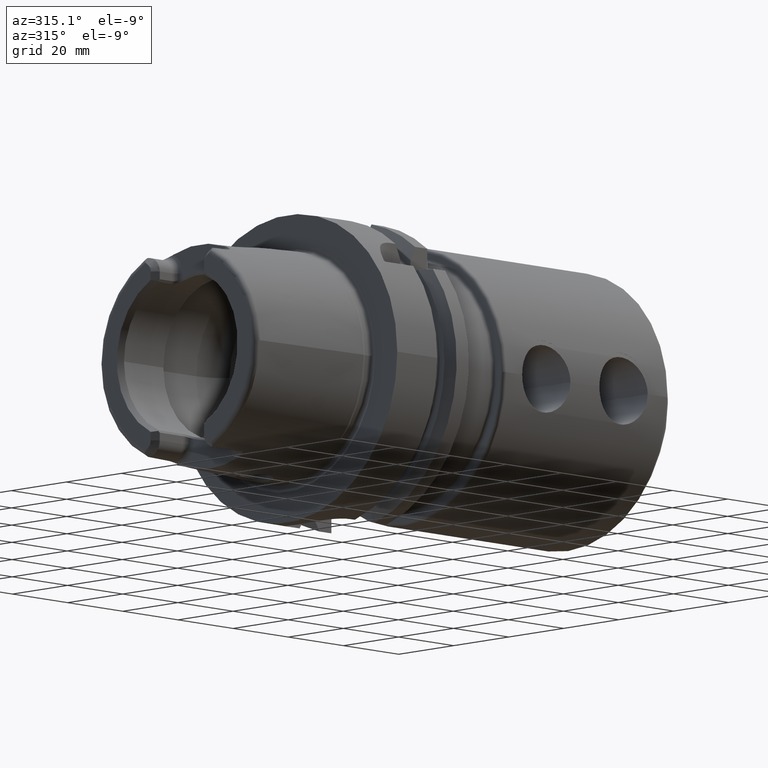
[diagram: clean part render]
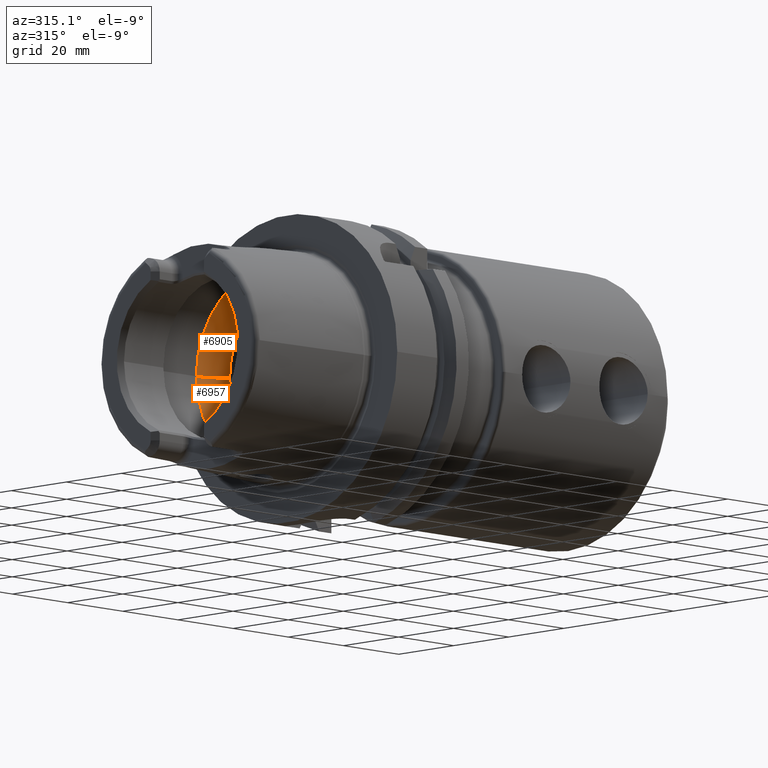
[diagram: same view with one multi-face feature highlighted, each face labeled with its STEP entity id]
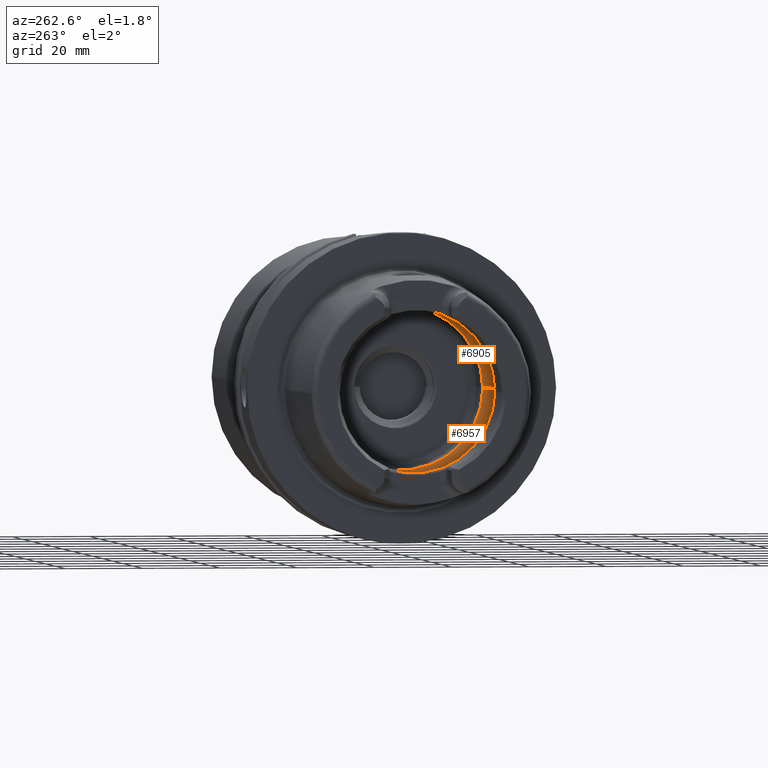
[diagram: same view with one multi-face feature highlighted, each face labeled with its STEP entity id]
A machine part, auxiliary view. The highlighted faces form ONE feature: a constant-radius fillet chain: 2 tangent blend faces with common blend radius 10 mm. The faces share edges in the B-rep.
A second angle (auxiliary view) of the same feature is appended — it is thin or edge-on in the first view.
Their STEP definitions:
[1] entity #6905 (Torus):
#2753=CARTESIAN_POINT('',(-7.75E0,0.E0,2.503658741279E1));
#2754=CARTESIAN_POINT('',(-7.75E0,1.161413944826E-1,2.503658741279E1));
#2755=CARTESIAN_POINT('',(-7.759353280947E0,3.548842682343E-1,
2.503524893594E1));
#2756=CARTESIAN_POINT('',(-7.808408224657E0,7.377757786258E-1,
2.502813969120E1));
#2757=CARTESIAN_POINT('',(-7.893536844474E0,1.117051637940E0,2.501544531385E1));
#2758=CARTESIAN_POINT('',(-7.969173100497E0,1.352692791760E0,2.500369856457E1));
#2759=CARTESIAN_POINT('',(-8.011228058169E0,1.467037285165E0,2.499698785062E1));
#2761=CARTESIAN_POINT('',(-8.011228058169E0,-1.467037285165E0,
2.499698785062E1));
#2762=CARTESIAN_POINT('',(-7.969313911749E0,-1.353075647722E0,
2.500367609531E1));
#2763=CARTESIAN_POINT('',(-7.893731282746E0,-1.117850280583E0,
2.501541625380E1));
#2764=CARTESIAN_POINT('',(-7.808218322235E0,-7.369928142967E-1,
2.502816795517E1));
#2765=CARTESIAN_POINT('',(-7.759228341302E0,-3.532973252629E-1,
2.503526676221E1));
#2766=CARTESIAN_POINT('',(-7.75E0,-1.154255832755E-1,2.503658741279E1));
#2767=CARTESIAN_POINT('',(-7.75E0,0.E0,2.503658741279E1));
#2769=CARTESIAN_POINT('',(0.E0,0.E0,0.E0));
#2770=DIRECTION('',(1.E0,0.E0,0.E0));
#2771=DIRECTION('',(0.E0,1.E0,0.E0));
#2772=AXIS2_PLACEMENT_3D('',#2769,#2770,#2771);
#2797=CARTESIAN_POINT('',(-8.011228058169E0,0.E0,0.E0));
#2798=DIRECTION('',(1.E0,0.E0,0.E0));
#2799=DIRECTION('',(0.E0,1.E0,0.E0));
#2800=AXIS2_PLACEMENT_3D('',#2797,#2798,#2799);
#2802=CARTESIAN_POINT('',(-8.011228058169E0,0.E0,0.E0));
#2803=DIRECTION('',(1.E0,0.E0,0.E0));
#2804=DIRECTION('',(0.E0,-5.858775100500E-2,9.982822624049E-1));
#2805=AXIS2_PLACEMENT_3D('',#2802,#2803,#2804);
#2902=CARTESIAN_POINT('',(-8.011228058169E0,1.504E1,0.E0));
#2903=DIRECTION('',(0.E0,0.E0,1.E0));
#2904=DIRECTION('',(8.011228058169E-1,5.985E-1,0.E0));
#2905=AXIS2_PLACEMENT_3D('',#2902,#2903,#2904);
#2912=CARTESIAN_POINT('',(-8.011228058169E0,-1.504E1,0.E0));
#2913=DIRECTION('',(0.E0,0.E0,-1.E0));
#2914=DIRECTION('',(8.011228058169E-1,-5.985E-1,0.E0));
#2915=AXIS2_PLACEMENT_3D('',#2912,#2913,#2914);
#3493=CARTESIAN_POINT('',(-7.75E0,0.E0,2.503658741279E1));
#3494=VERTEX_POINT('',#3493);
#3511=CARTESIAN_POINT('',(0.E0,2.1025E1,0.E0));
#3512=VERTEX_POINT('',#3511);
#3513=CARTESIAN_POINT('',(-8.011228058169E0,2.504E1,0.E0));
#3514=VERTEX_POINT('',#3513);
#3523=CARTESIAN_POINT('',(0.E0,-2.1025E1,0.E0));
#3524=VERTEX_POINT('',#3523);
#3525=CARTESIAN_POINT('',(-8.011228058169E0,-2.504E1,0.E0));
#3526=VERTEX_POINT('',#3525);
#3543=VERTEX_POINT('',#2759);
#3544=VERTEX_POINT('',#2761);
#6886=CARTESIAN_POINT('',(-8.011228058169E0,0.E0,0.E0));
#6887=DIRECTION('',(1.E0,0.E0,0.E0));
#6888=DIRECTION('',(0.E0,-1.E0,0.E0));
#6889=AXIS2_PLACEMENT_3D('',#6886,#6887,#6888);
#6890=TOROIDAL_SURFACE('',#6889,1.504E1,1.E1);
#6891=ORIENTED_EDGE('',*,*,#6863,.F.);
#6892=ORIENTED_EDGE('',*,*,#6613,.F.);
#6894=ORIENTED_EDGE('',*,*,#6893,.T.);
#6896=ORIENTED_EDGE('',*,*,#6895,.F.);
#6898=ORIENTED_EDGE('',*,*,#6897,.F.);
#6900=ORIENTED_EDGE('',*,*,#6899,.T.);
#6902=ORIENTED_EDGE('',*,*,#6901,.T.);
#6903=EDGE_LOOP('',(#6891,#6892,#6894,#6896,#6898,#6900,#6902));
#6904=FACE_OUTER_BOUND('',#6903,.F.);
#6905=ADVANCED_FACE('',(#6904),#6890,.F.);
#2760=B_SPLINE_CURVE_WITH_KNOTS('',3,(#2753,#2754,#2755,#2756,#2757,#2758,
#2759),.UNSPECIFIED.,.F.,.F.,(4,1,1,1,4),(0.E0,2.5E-1,5.E-1,7.5E-1,1.E0),
.UNSPECIFIED.);
#2768=B_SPLINE_CURVE_WITH_KNOTS('',3,(#2761,#2762,#2763,#2764,#2765,#2766,
#2767),.UNSPECIFIED.,.F.,.F.,(4,1,1,1,4),(0.E0,2.5E-1,5.E-1,7.5E-1,1.E0),
.UNSPECIFIED.);
#2773=CIRCLE('',#2772,2.1025E1);
#2801=CIRCLE('',#2800,2.504E1);
#2806=CIRCLE('',#2805,2.504E1);
#2906=CIRCLE('',#2905,1.E1);
#2916=CIRCLE('',#2915,1.E1);
#6613=EDGE_CURVE('',#3544,#3494,#2768,.T.);
#6863=EDGE_CURVE('',#3494,#3543,#2760,.T.);
#6893=EDGE_CURVE('',#3544,#3526,#2806,.T.);
#6895=EDGE_CURVE('',#3524,#3526,#2916,.T.);
#6897=EDGE_CURVE('',#3512,#3524,#2773,.T.);
#6899=EDGE_CURVE('',#3512,#3514,#2906,.T.);
#6901=EDGE_CURVE('',#3514,#3543,#2801,.T.);
[2] entity #6957 (Torus):
#2876=CARTESIAN_POINT('',(-8.011228058169E0,0.E0,0.E0));
#2877=DIRECTION('',(-1.E0,0.E0,0.E0));
#2878=DIRECTION('',(0.E0,-5.858775100500E-2,-9.982822624049E-1));
#2879=AXIS2_PLACEMENT_3D('',#2876,#2877,#2878);
#2889=CARTESIAN_POINT('',(-8.011228058169E0,0.E0,0.E0));
#2890=DIRECTION('',(-1.E0,0.E0,0.E0));
#2891=DIRECTION('',(0.E0,1.E0,0.E0));
#2892=AXIS2_PLACEMENT_3D('',#2889,#2890,#2891);
#2894=CARTESIAN_POINT('',(-8.011228058169E0,1.467037285165E0,
-2.499698785062E1));
#2895=CARTESIAN_POINT('',(-7.969221740755E0,1.352825041226E0,
-2.500369080304E1));
#2896=CARTESIAN_POINT('',(-7.893622626238E0,1.117362191473E0,
-2.501543230147E1));
#2897=CARTESIAN_POINT('',(-7.808430544306E0,7.379482216825E-1,
-2.502813649459E1));
#2898=CARTESIAN_POINT('',(-7.759345723360E0,3.548348974292E-1,
-2.503525001990E1));
#2899=CARTESIAN_POINT('',(-7.75E0,1.161091382185E-1,-2.503658741279E1));
#2900=CARTESIAN_POINT('',(-7.75E0,0.E0,-2.503658741279E1));
#2902=CARTESIAN_POINT('',(-8.011228058169E0,1.504E1,0.E0));
#2903=DIRECTION('',(0.E0,0.E0,1.E0));
#2904=DIRECTION('',(8.011228058169E-1,5.985E-1,0.E0));
#2905=AXIS2_PLACEMENT_3D('',#2902,#2903,#2904);
#2907=CARTESIAN_POINT('',(0.E0,0.E0,0.E0));
#2908=DIRECTION('',(-1.E0,0.E0,0.E0));
#2909=DIRECTION('',(0.E0,1.E0,0.E0));
#2910=AXIS2_PLACEMENT_3D('',#2907,#2908,#2909);
#2912=CARTESIAN_POINT('',(-8.011228058169E0,-1.504E1,0.E0));
#2913=DIRECTION('',(0.E0,0.E0,-1.E0));
#2914=DIRECTION('',(8.011228058169E-1,-5.985E-1,0.E0));
#2915=AXIS2_PLACEMENT_3D('',#2912,#2913,#2914);
#2917=CARTESIAN_POINT('',(-7.75E0,0.E0,-2.503658741279E1));
#2918=CARTESIAN_POINT('',(-7.75E0,-1.154500960582E-1,-2.503658741279E1));
#2919=CARTESIAN_POINT('',(-7.759234524586E0,-3.533263311748E-1,
-2.503526587569E1));
#2920=CARTESIAN_POINT('',(-7.808191445882E0,-7.367925601652E-1,
-2.502817181463E1));
#2921=CARTESIAN_POINT('',(-7.893636589598E0,-1.117508177650E0,
-2.501543062260E1));
#2922=CARTESIAN_POINT('',(-7.969260612967E0,-1.352930732057E0,
-2.500368460020E1));
#2923=CARTESIAN_POINT('',(-8.011228058169E0,-1.467037285165E0,
-2.499698785062E1));
#3501=CARTESIAN_POINT('',(-7.75E0,0.E0,-2.503658741279E1));
#3502=VERTEX_POINT('',#3501);
#3511=CARTESIAN_POINT('',(0.E0,2.1025E1,0.E0));
#3512=VERTEX_POINT('',#3511);
#3513=CARTESIAN_POINT('',(-8.011228058169E0,2.504E1,0.E0));
#3514=VERTEX_POINT('',#3513);
#3523=CARTESIAN_POINT('',(0.E0,-2.1025E1,0.E0));
#3524=VERTEX_POINT('',#3523);
#3525=CARTESIAN_POINT('',(-8.011228058169E0,-2.504E1,0.E0));
#3526=VERTEX_POINT('',#3525);
#3545=VERTEX_POINT('',#2894);
#3546=VERTEX_POINT('',#2923);
#6942=CARTESIAN_POINT('',(-8.011228058169E0,0.E0,0.E0));
#6943=DIRECTION('',(1.E0,0.E0,0.E0));
#6944=DIRECTION('',(0.E0,-1.E0,0.E0));
#6945=AXIS2_PLACEMENT_3D('',#6942,#6943,#6944);
#6946=TOROIDAL_SURFACE('',#6945,1.504E1,1.E1);
#6947=ORIENTED_EDGE('',*,*,#6880,.F.);
#6948=ORIENTED_EDGE('',*,*,#6937,.F.);
#6949=ORIENTED_EDGE('',*,*,#6899,.F.);
#6951=ORIENTED_EDGE('',*,*,#6950,.T.);
#6952=ORIENTED_EDGE('',*,*,#6895,.T.);
#6953=ORIENTED_EDGE('',*,*,#6931,.F.);
#6954=ORIENTED_EDGE('',*,*,#6628,.F.);
#6955=EDGE_LOOP('',(#6947,#6948,#6949,#6951,#6952,#6953,#6954));
#6956=FACE_OUTER_BOUND('',#6955,.F.);
#6957=ADVANCED_FACE('',(#6956),#6946,.F.);
#2880=CIRCLE('',#2879,2.504E1);
#2893=CIRCLE('',#2892,2.504E1);
#2901=B_SPLINE_CURVE_WITH_KNOTS('',3,(#2894,#2895,#2896,#2897,#2898,#2899,
#2900),.UNSPECIFIED.,.F.,.F.,(4,1,1,1,4),(0.E0,2.5E-1,5.E-1,7.5E-1,1.E0),
.UNSPECIFIED.);
#2906=CIRCLE('',#2905,1.E1);
#2911=CIRCLE('',#2910,2.1025E1);
#2916=CIRCLE('',#2915,1.E1);
#2924=B_SPLINE_CURVE_WITH_KNOTS('',3,(#2917,#2918,#2919,#2920,#2921,#2922,
#2923),.UNSPECIFIED.,.F.,.F.,(4,1,1,1,4),(0.E0,2.5E-1,5.E-1,7.5E-1,1.E0),
.UNSPECIFIED.);
#6628=EDGE_CURVE('',#3502,#3546,#2924,.T.);
#6880=EDGE_CURVE('',#3545,#3502,#2901,.T.);
#6895=EDGE_CURVE('',#3524,#3526,#2916,.T.);
#6899=EDGE_CURVE('',#3512,#3514,#2906,.T.);
#6931=EDGE_CURVE('',#3546,#3526,#2880,.T.);
#6937=EDGE_CURVE('',#3514,#3545,#2893,.T.);
#6950=EDGE_CURVE('',#3512,#3524,#2911,.T.);